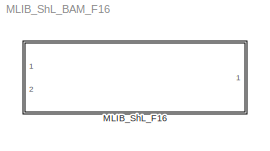
MODEL MLIB_ShL_BAM_F16
KIND model
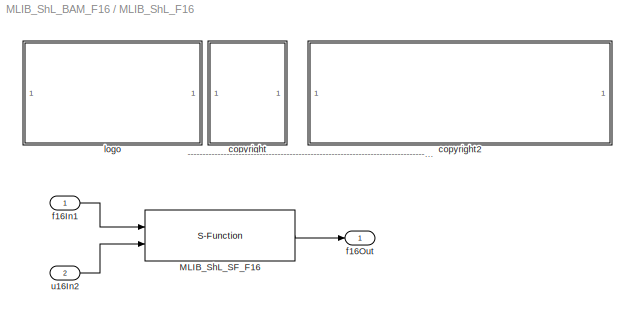
BLOCK [SubSystem] MLIB_ShL_F16
  FunctionWithSeparateData = off
  MaskDescription = Bit accurate model of the fuction shifts the first parameter to left by number defined by second parameter. All parameters as well as input and output are 16bit integers.
  MaskDisplay = color('black');port_label('input',1,'f16In1');port_label('input',2,'u16In2');port_label('output',1,'f16Out');color('black');disp('MLIB_ShL_F16');color('blue');text(tX,tY, 'BAM', 'horizontalAlignment', 'center');
  MaskHideContents = off
  MaskIconFrame = on
  MaskIconOpaque = on
  MaskIconRotate = none
  MaskIconUnits = pixels
  MaskInitialization = pos = get_param(gcb, 'Position');width = pos(3) - pos(1); height = pos(4) - pos(2);tX=width/2;tY=height*0.9;
  MaskPortRotate = default
  MaskType = MLIB_ShL_F16
  MinAlgLoopOccurrences = off
  Opaque = off
  Ports = [2, 1]
  PropExecContextOutsideSubsystem = off
  RTWSystemCode = Auto
  RequestExecContextInheritance = off
BLOCK [S-Function] MLIB_ShL_F16/MLIB_ShL_SF_F16
  EnableBusSupport = off
  FunctionName = MLIB_ShL_SF_F16
  Ports = [2, 1]
BLOCK [SubSystem] MLIB_ShL_F16/<copyright redacted>
  FunctionWithSeparateData = off
  MaskDisplay = text(10,90,'FILE:');text(10,75,'DESRIPTION:')text(10,60,'<copyright redacted>
  MaskHideContents = off
  MaskIconFrame = off
  MaskIconOpaque = on
  MaskIconRotate = none
  MaskIconUnits = pixels
  MaskPortRotate = default
  MinAlgLoopOccurrences = off
  Opaque = off
  Ports = []
  PropExecContextOutsideSubsystem = off
  RTWSystemCode = Auto
  RequestExecContextInheritance = off
BLOCK [SubSystem] MLIB_ShL_F16/copyright2
  FunctionWithSeparateData = off
  MaskDisplay = text(10,90,'MLIB_ShL_BAM_F16.mdl');text(10,75,'Shift the first parameter to left.');text(10,60,'Freescale')text(10,45,'0.1');text(10,30,'04-Jul-2011');text(10,15,'');
  MaskHideContents = off
  MaskIconFrame = off
  MaskIconOpaque = on
  MaskIconRotate = none
  MaskIconUnits = pixels
  MaskPortRotate = default
  MinAlgLoopOccurrences = off
  Opaque = off
  Ports = []
  PropExecContextOutsideSubsystem = off
  RTWSystemCode = Auto
  RequestExecContextInheritance = off
BLOCK [Inport] MLIB_ShL_F16/f16In1
  IconDisplay = Port number
  OutDataType = fixdt(1, 16)
  OutScaling = 2^0
BLOCK [Outport] MLIB_ShL_F16/f16Out
  IconDisplay = Port number
  OutDataType = fixdt(1, 16)
  OutScaling = 2^0
BLOCK [SubSystem] MLIB_ShL_F16/logo
  FunctionWithSeparateData = off
  MaskDisplay = image(imread('logo.jpg'))
  MaskHideContents = off
  MaskIconFrame = off
  MaskIconOpaque = on
  MaskIconRotate = none
  MaskIconUnits = autoscale
  MaskPortRotate = default
  MinAlgLoopOccurrences = off
  Opaque = off
  Ports = []
  PropExecContextOutsideSubsystem = off
  RTWSystemCode = Auto
  RequestExecContextInheritance = off
BLOCK [Inport] MLIB_ShL_F16/u16In2
  IconDisplay = Port number
  OutDataType = fixdt(1, 16)
  OutScaling = 2^0
  Port = 2
ANNOTATION MLIB_ShL_F16: ---------------------------------------------------------------------------------------------------------------------------------------------------------------------------------------------------
LINE MLIB_ShL_F16/MLIB_ShL_SF_F16:1 -> MLIB_ShL_F16/f16Out:1
LINE MLIB_ShL_F16/f16In1:1 -> MLIB_ShL_F16/MLIB_ShL_SF_F16:1
LINE MLIB_ShL_F16/u16In2:1 -> MLIB_ShL_F16/MLIB_ShL_SF_F16:2
